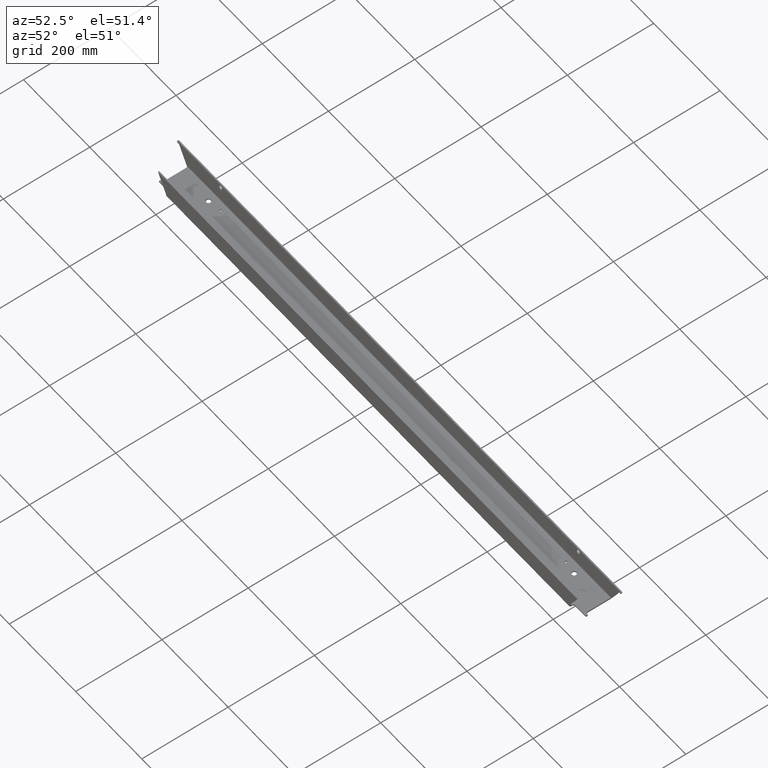
[diagram: clean part render]
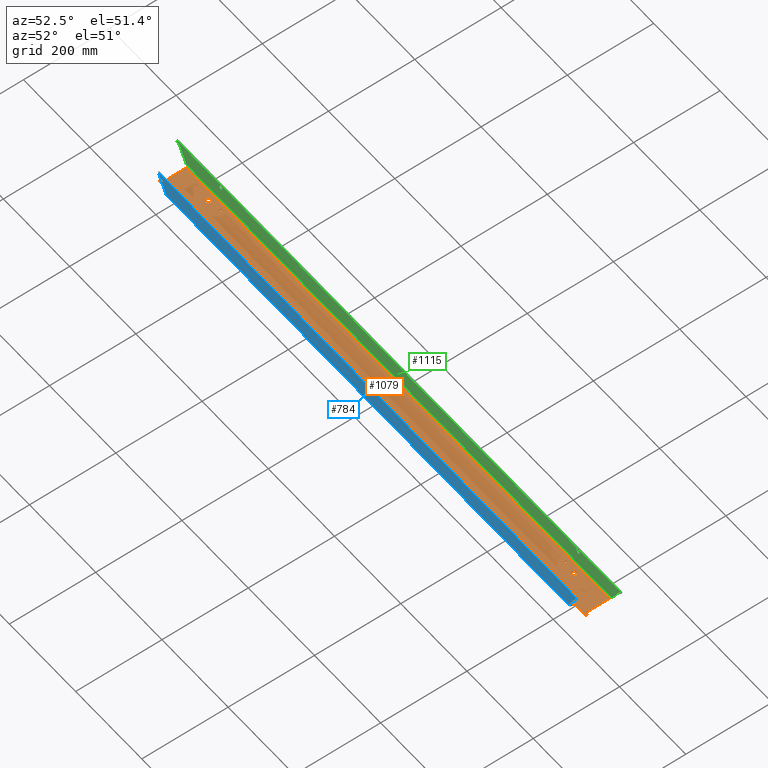
[diagram: same view with three faces highlighted in distinct colors, each labeled with its STEP entity id]
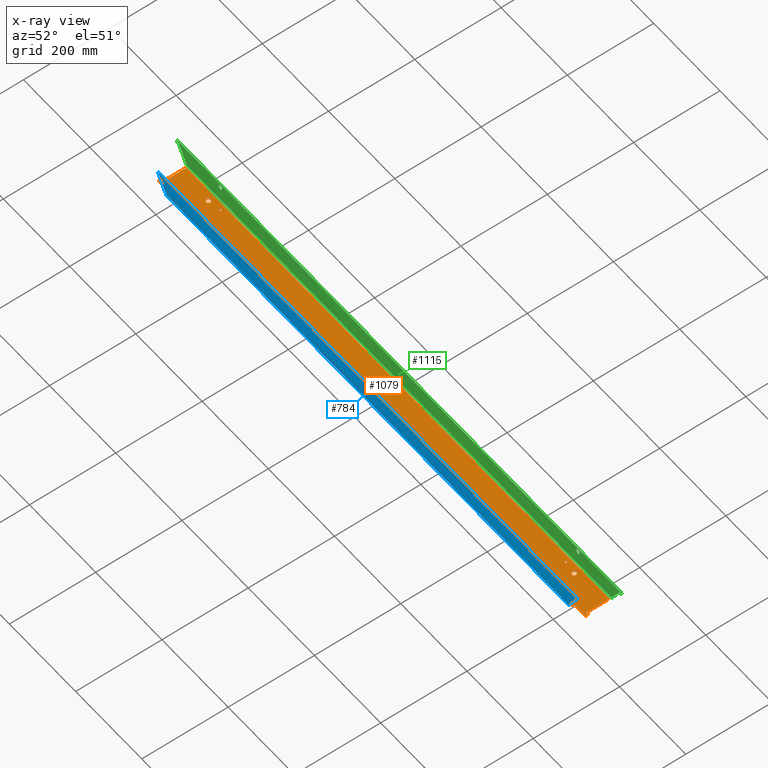
[diagram: x-ray of the same camera — body ghosted, the three highlighted faces saturated]
A machine part, auxiliary view with three faces highlighted in distinct colors.
The next image is the same camera in x-ray (body ghosted, the three faces saturated) — at least one of them is partly hidden behind the body in this view.
Their STEP definitions:

[orange] entity #1079 — the highlighted planar face has unit normal (-0, 0, 1).
#13 = EDGE_CURVE ( 'NONE', #2128, #1269, #2053, .T. ) ;
#24 = CARTESIAN_POINT ( 'NONE',  ( 1090.972523324353915, -1113.805262667903662, -1257.499999999999773 ) ) ;
#37 = CARTESIAN_POINT ( 'NONE',  ( 519.9000000000004320, -1093.805262667903662, -1257.499999999999773 ) ) ;
#45 = AXIS2_PLACEMENT_3D ( 'NONE', #1205, #2451, #2011 ) ;
#46 = CARTESIAN_POINT ( 'NONE',  ( 557.3731010869422562, -1114.805262667903662, -1257.499999999999545 ) ) ;
#47 = VECTOR ( 'NONE', #630, 1000.000000000000000 ) ;
#63 = CARTESIAN_POINT ( 'NONE',  ( 1090.972523324353915, -1093.805262667903662, -1257.499999999999773 ) ) ;
#81 = VECTOR ( 'NONE', #1681, 1000.000000000000000 ) ;
#83 = CARTESIAN_POINT ( 'NONE',  ( 523.1000000000004775, -1107.805262667903889, -1257.499999999999773 ) ) ;
#85 = AXIS2_PLACEMENT_3D ( 'NONE', #1565, #1791, #996 ) ;
#86 = DIRECTION ( 'NONE',  ( 0.000000000000000000, -1.000000000000000000, 0.000000000000000000 ) ) ;
#87 = VERTEX_POINT ( 'NONE', #2360 ) ;
#92 = CARTESIAN_POINT ( 'NONE',  ( 608.4639947775447126, -1163.805262667903662, -1257.499999999999545 ) ) ;
#98 = DIRECTION ( 'NONE',  ( -1.000000000000000000, 0.000000000000000000, -0.000000000000000000 ) ) ;
#115 = ORIENTED_EDGE ( 'NONE', *, *, #641, .T. ) ;
#123 = VECTOR ( 'NONE', #798, 1000.000000000000000 ) ;
#124 = CARTESIAN_POINT ( 'NONE',  ( -552.1231010869422562, -1148.805262667896613, -1257.499999999999545 ) ) ;
#125 = ORIENTED_EDGE ( 'NONE', *, *, #470, .F. ) ;
#127 = VECTOR ( 'NONE', #2058, 1000.000000000000000 ) ;
#128 = VECTOR ( 'NONE', #593, 1000.000000000000000 ) ;
#137 = CARTESIAN_POINT ( 'NONE',  ( -638.8674066218875396, -1153.805262667903662, -1257.499999999999773 ) ) ;
#160 = DIRECTION ( 'NONE',  ( 1.000000000000000000, 0.000000000000000000, 0.000000000000000000 ) ) ;
#184 = EDGE_CURVE ( 'NONE', #1341, #818, #445, .T. ) ;
#186 = VERTEX_POINT ( 'NONE', #802 ) ;
#199 = CIRCLE ( 'NONE', #1029, 5.249999999999976907 ) ;
#203 = DIRECTION ( 'NONE',  ( -0.000000000000000000, 0.000000000000000000, 1.000000000000000000 ) ) ;
#217 = VECTOR ( 'NONE', #2604, 1000.000000000000000 ) ;
#231 = ORIENTED_EDGE ( 'NONE', *, *, #2386, .F. ) ;
#241 = VECTOR ( 'NONE', #860, 1000.000000000000000 ) ;
#242 = CARTESIAN_POINT ( 'NONE',  ( 519.9000000000004320, -1107.805262667903889, -1257.499999999999773 ) ) ;
#243 = CIRCLE ( 'NONE', #948, 5.000000000000004441 ) ;
#246 = EDGE_LOOP ( 'NONE', ( #231, #125 ) ) ;
#256 = VECTOR ( 'NONE', #2500, 1000.000000000000000 ) ;
#269 = ORIENTED_EDGE ( 'NONE', *, *, #2535, .T. ) ;
#273 = EDGE_CURVE ( 'NONE', #1632, #1357, #2556, .T. ) ;
#279 = VECTOR ( 'NONE', #2539, 1000.000000000000000 ) ;
#283 = DIRECTION ( 'NONE',  ( -0.000000000000000000, -0.000000000000000000, 1.000000000000000000 ) ) ;
#286 = ORIENTED_EDGE ( 'NONE', *, *, #541, .T. ) ;
#288 = FACE_BOUND ( 'NONE', #421, .T. ) ;
#294 = LINE ( 'NONE', #1149, #2669 ) ;
#296 = ORIENTED_EDGE ( 'NONE', *, *, #2672, .T. ) ;
#300 = VECTOR ( 'NONE', #349, 1000.000000000000000 ) ;
#305 = ORIENTED_EDGE ( 'NONE', *, *, #2081, .F. ) ;
#306 = DIRECTION ( 'NONE',  ( 1.000000000000000000, 0.000000000000000000, 0.000000000000000000 ) ) ;
#314 = ORIENTED_EDGE ( 'NONE', *, *, #1686, .F. ) ;
#323 = EDGE_CURVE ( 'NONE', #908, #517, #2446, .T. ) ;
#340 = CIRCLE ( 'NONE', #85, 5.249999999999976907 ) ;
#349 = DIRECTION ( 'NONE',  ( 0.000000000000000000, 1.000000000000000000, -0.000000000000000000 ) ) ;
#362 = EDGE_CURVE ( 'NONE', #1357, #1904, #902, .T. ) ;
#367 = CARTESIAN_POINT ( 'NONE',  ( -644.8674066218874259, -1157.805262667903662, -1257.499999999999545 ) ) ;
#373 = EDGE_CURVE ( 'NONE', #908, #2649, #1262, .T. ) ;
#375 = DIRECTION ( 'NONE',  ( -0.000000000000000000, 0.000000000000000000, 1.000000000000000000 ) ) ;
#411 = CARTESIAN_POINT ( 'NONE',  ( 1090.972523324353915, -1107.805262667903889, -1257.499999999999773 ) ) ;
#416 = EDGE_CURVE ( 'NONE', #1583, #1632, #1820, .T. ) ;
#421 = EDGE_LOOP ( 'NONE', ( #553, #1244 ) ) ;
#445 = CIRCLE ( 'NONE', #592, 5.249999999999976907 ) ;
#451 = CARTESIAN_POINT ( 'NONE',  ( -552.1231010869422562, -1114.805262667903662, -1257.499999999999545 ) ) ;
#454 = DIRECTION ( 'NONE',  ( 0.000000000000000000, 1.000000000000000000, -0.000000000000000000 ) ) ;
#457 = EDGE_CURVE ( 'NONE', #186, #1502, #2488, .T. ) ;
#469 = CARTESIAN_POINT ( 'NONE',  ( 523.1000000000004775, -1093.805262667903662, -1257.499999999999773 ) ) ;
#470 = EDGE_CURVE ( 'NONE', #1720, #984, #199, .T. ) ;
#485 = CARTESIAN_POINT ( 'NONE',  ( 644.8674066218874259, -1157.805262667903662, -1257.499999999999545 ) ) ;
#486 = DIRECTION ( 'NONE',  ( 0.000000000000000000, -1.000000000000000000, 0.000000000000000000 ) ) ;
#495 = EDGE_CURVE ( 'NONE', #576, #2644, #1459, .T. ) ;
#517 = VERTEX_POINT ( 'NONE', #1235 ) ;
#518 = VECTOR ( 'NONE', #1484, 1000.000000000000000 ) ;
#534 = DIRECTION ( 'NONE',  ( -0.000000000000000000, 0.000000000000000000, 1.000000000000000000 ) ) ;
#541 = EDGE_CURVE ( 'NONE', #2261, #967, #604, .T. ) ;
#553 = ORIENTED_EDGE ( 'NONE', *, *, #1492, .F. ) ;
#561 = CARTESIAN_POINT ( 'NONE',  ( 523.1000000000004775, -1113.805262667903662, -1257.499999999999773 ) ) ;
#570 = CARTESIAN_POINT ( 'NONE',  ( 638.8674066218876533, -1093.805262667903662, -1257.499999999999773 ) ) ;
#576 = VERTEX_POINT ( 'NONE', #847 ) ;
#579 = EDGE_CURVE ( 'NONE', #873, #1088, #823, .T. ) ;
#580 = LINE ( 'NONE', #1789, #217 ) ;
#582 = EDGE_CURVE ( 'NONE', #1930, #1069, #243, .T. ) ;
#589 = CARTESIAN_POINT ( 'NONE',  ( -644.8674066218874259, -1153.805262667903662, -1257.499999999999545 ) ) ;
#592 = AXIS2_PLACEMENT_3D ( 'NONE', #1414, #1874, #1887 ) ;
#593 = DIRECTION ( 'NONE',  ( -1.000000000000000000, 0.000000000000000000, 0.000000000000000000 ) ) ;
#604 = LINE ( 'NONE', #1065, #241 ) ;
#608 = AXIS2_PLACEMENT_3D ( 'NONE', #124, #534, #1355 ) ;
#612 = LINE ( 'NONE', #1669, #127 ) ;
#615 = ORIENTED_EDGE ( 'NONE', *, *, #416, .T. ) ;
#625 = VERTEX_POINT ( 'NONE', #2540 ) ;
#630 = DIRECTION ( 'NONE',  ( 1.000000000000000000, 0.000000000000000000, 0.000000000000000000 ) ) ;
#637 = EDGE_CURVE ( 'NONE', #1787, #1083, #2370, .T. ) ;
#641 = EDGE_CURVE ( 'NONE', #2680, #1121, #294, .T. ) ;
#646 = CARTESIAN_POINT ( 'NONE',  ( -546.8731010869423699, -1114.805262667903662, -1257.499999999999545 ) ) ;
#658 = FACE_BOUND ( 'NONE', #2068, .T. ) ;
#665 = ORIENTED_EDGE ( 'NONE', *, *, #323, .F. ) ;
#673 = CARTESIAN_POINT ( 'NONE',  ( -519.9000000000004320, -1155.805262667903889, -1257.499999999999773 ) ) ;
#676 = CARTESIAN_POINT ( 'NONE',  ( 643.8674066218874259, -1157.805262667903662, -1257.499999999999545 ) ) ;
#685 = ORIENTED_EDGE ( 'NONE', *, *, #13, .T. ) ;
#686 = CARTESIAN_POINT ( 'NONE',  ( -638.8674066218875396, -1099.805262667903662, -1257.499999999999773 ) ) ;
#694 = CARTESIAN_POINT ( 'NONE',  ( -519.9000000000004320, -1113.805262667903662, -1257.499999999999773 ) ) ;
#700 = EDGE_CURVE ( 'NONE', #1904, #1583, #2110, .T. ) ;
#723 = LINE ( 'NONE', #904, #1136 ) ;
#725 = CARTESIAN_POINT ( 'NONE',  ( -519.9000000000004320, -1093.805262667903662, -1257.499999999999773 ) ) ;
#728 = VECTOR ( 'NONE', #1077, 1000.000000000000000 ) ;
#729 = CARTESIAN_POINT ( 'NONE',  ( 644.8674066218873122, -1154.805262667903435, -1257.499999999999318 ) ) ;
#737 = DIRECTION ( 'NONE',  ( 1.000000000000000000, 0.000000000000000000, 0.000000000000000000 ) ) ;
#746 = CIRCLE ( 'NONE', #1009, 5.249999999999976907 ) ;
#756 = CARTESIAN_POINT ( 'NONE',  ( 546.8731010869423699, -1114.805262667903662, -1257.499999999999545 ) ) ;
#758 = ORIENTED_EDGE ( 'NONE', *, *, #2411, .F. ) ;
#768 = AXIS2_PLACEMENT_3D ( 'NONE', #1422, #2237, #737 ) ;
#795 = DIRECTION ( 'NONE',  ( 0.000000000000000000, -1.000000000000000000, 0.000000000000000000 ) ) ;
#798 = DIRECTION ( 'NONE',  ( 1.000000000000000000, 0.000000000000000000, 0.000000000000000000 ) ) ;
#802 = CARTESIAN_POINT ( 'NONE',  ( -557.3731010869422562, -1148.805262667896613, -1257.499999999999545 ) ) ;
#810 = DIRECTION ( 'NONE',  ( 1.000000000000000000, 0.000000000000000000, 0.000000000000000000 ) ) ;
#818 = VERTEX_POINT ( 'NONE', #756 ) ;
#823 = LINE ( 'NONE', #1281, #728 ) ;
#824 = CARTESIAN_POINT ( 'NONE',  ( 519.9000000000004320, -1155.805262667903889, -1257.499999999999773 ) ) ;
#847 = CARTESIAN_POINT ( 'NONE',  ( 643.8674066218874259, -1153.805262667903662, -1257.499999999999545 ) ) ;
#850 = VECTOR ( 'NONE', #2086, 1000.000000000000000 ) ;
#855 = LINE ( 'NONE', #411, #81 ) ;
#856 = LINE ( 'NONE', #37, #1441 ) ;
#859 = EDGE_CURVE ( 'NONE', #2060, #1853, #1296, .T. ) ;
#860 = DIRECTION ( 'NONE',  ( 0.000000000000000000, 1.000000000000000000, 0.000000000000000000 ) ) ;
#861 = CARTESIAN_POINT ( 'NONE',  ( -613.4639947775447126, -1158.805262667903435, -1257.499999999999773 ) ) ;
#865 = EDGE_CURVE ( 'NONE', #1787, #873, #1410, .T. ) ;
#873 = VERTEX_POINT ( 'NONE', #137 ) ;
#899 = LINE ( 'NONE', #1951, #910 ) ;
#902 = LINE ( 'NONE', #1725, #279 ) ;
#904 = CARTESIAN_POINT ( 'NONE',  ( -519.9000000000004320, -1093.805262667903662, -1257.499999999999773 ) ) ;
#908 = VERTEX_POINT ( 'NONE', #2299 ) ;
#910 = VECTOR ( 'NONE', #2106, 1000.000000000000000 ) ;
#911 = FACE_BOUND ( 'NONE', #1031, .T. ) ;
#928 = EDGE_LOOP ( 'NONE', ( #1011, #758 ) ) ;
#932 = CARTESIAN_POINT ( 'NONE',  ( 1090.972523324353915, -1155.805262667903889, -1257.499999999999773 ) ) ;
#941 = CARTESIAN_POINT ( 'NONE',  ( -552.1231010869422562, -1114.805262667903662, -1257.499999999999545 ) ) ;
#945 = EDGE_CURVE ( 'NONE', #967, #2354, #855, .T. ) ;
#948 = AXIS2_PLACEMENT_3D ( 'NONE', #1449, #203, #1860 ) ;
#967 = VERTEX_POINT ( 'NONE', #1242 ) ;
#984 = VERTEX_POINT ( 'NONE', #646 ) ;
#990 = EDGE_CURVE ( 'NONE', #1853, #1269, #612, .T. ) ;
#996 = DIRECTION ( 'NONE',  ( 1.000000000000000000, 0.000000000000000000, 0.000000000000000000 ) ) ;
#997 = CARTESIAN_POINT ( 'NONE',  ( 523.1000000000004775, -1093.805262667903662, -1257.499999999999773 ) ) ;
#1009 = AXIS2_PLACEMENT_3D ( 'NONE', #2034, #1824, #810 ) ;
#1011 = ORIENTED_EDGE ( 'NONE', *, *, #1232, .F. ) ;
#1029 = AXIS2_PLACEMENT_3D ( 'NONE', #941, #1161, #1979 ) ;
#1031 = EDGE_LOOP ( 'NONE', ( #2319, #1045 ) ) ;
#1034 = EDGE_CURVE ( 'NONE', #1926, #2261, #1883, .T. ) ;
#1041 = ORIENTED_EDGE ( 'NONE', *, *, #1942, .T. ) ;
#1045 = ORIENTED_EDGE ( 'NONE', *, *, #2129, .F. ) ;
#1065 = CARTESIAN_POINT ( 'NONE',  ( -523.1000000000003638, -1093.805262667903662, -1257.499999999999773 ) ) ;
#1067 = EDGE_CURVE ( 'NONE', #1121, #2526, #899, .T. ) ;
#1069 = VERTEX_POINT ( 'NONE', #92 ) ;
#1073 = FACE_OUTER_BOUND ( 'NONE', #2662, .T. ) ;
#1077 = DIRECTION ( 'NONE',  ( 0.000000000000000000, 1.000000000000000000, -0.000000000000000000 ) ) ;
#1079 = ADVANCED_FACE ( 'NONE', ( #1073, #1329, #288, #911, #2565, #2339, #1086, #1102, #658 ), #2366, .T. ) ;
#1081 = ORIENTED_EDGE ( 'NONE', *, *, #1095, .T. ) ;
#1083 = VERTEX_POINT ( 'NONE', #1749 ) ;
#1086 = FACE_BOUND ( 'NONE', #2389, .T. ) ;
#1088 = VERTEX_POINT ( 'NONE', #686 ) ;
#1095 = EDGE_CURVE ( 'NONE', #2072, #2619, #1696, .T. ) ;
#1102 = FACE_BOUND ( 'NONE', #2056, .T. ) ;
#1113 = ORIENTED_EDGE ( 'NONE', *, *, #582, .F. ) ;
#1117 = ORIENTED_EDGE ( 'NONE', *, *, #1448, .T. ) ;
#1121 = VERTEX_POINT ( 'NONE', #1302 ) ;
#1122 = CARTESIAN_POINT ( 'NONE',  ( -546.8731010869423699, -1148.805262667896613, -1257.499999999999545 ) ) ;
#1128 = B_SPLINE_CURVE_WITH_KNOTS ( 'NONE', 1,
 ( #2393, #1388 ),
 .UNSPECIFIED., .F., .F.,
 ( 2, 2 ),
 ( 0.2499999999999930611, 0.4375000000000052180 ),
 .UNSPECIFIED. ) ;
#1136 = VECTOR ( 'NONE', #1728, 1000.000000000000000 ) ;
#1138 = VERTEX_POINT ( 'NONE', #673 ) ;
#1149 = CARTESIAN_POINT ( 'NONE',  ( -523.1000000000003638, -1093.805262667903662, -1257.499999999999773 ) ) ;
#1159 = LINE ( 'NONE', #570, #300 ) ;
#1161 = DIRECTION ( 'NONE',  ( -0.000000000000000000, 0.000000000000000000, 1.000000000000000000 ) ) ;
#1162 = CARTESIAN_POINT ( 'NONE',  ( -613.4639947775447126, -1163.805262667903662, -1257.499999999999773 ) ) ;
#1174 = DIRECTION ( 'NONE',  ( -1.000000000000000000, 0.000000000000000000, -0.000000000000000000 ) ) ;
#1205 = CARTESIAN_POINT ( 'NONE',  ( 643.8674066218874259, -1154.805262667903435, -1257.499999999999545 ) ) ;
#1216 = EDGE_CURVE ( 'NONE', #2128, #1083, #1128, .T. ) ;
#1229 = CARTESIAN_POINT ( 'NONE',  ( 557.3731010869422562, -1148.805262667896613, -1257.499999999999545 ) ) ;
#1232 = EDGE_CURVE ( 'NONE', #2547, #1612, #340, .T. ) ;
#1235 = CARTESIAN_POINT ( 'NONE',  ( 643.8674066218874259, -1158.805262667903435, -1257.499999999999545 ) ) ;
#1242 = CARTESIAN_POINT ( 'NONE',  ( -523.1000000000004775, -1107.805262667903889, -1257.499999999999773 ) ) ;
#1244 = ORIENTED_EDGE ( 'NONE', *, *, #457, .F. ) ;
#1246 = CARTESIAN_POINT ( 'NONE',  ( -643.8674066218874259, -1153.805262667903662, -1257.499999999999545 ) ) ;
#1250 = CARTESIAN_POINT ( 'NONE',  ( 1090.972523324353915, -1099.805262667903662, -1257.499999999999773 ) ) ;
#1262 = B_SPLINE_CURVE_WITH_KNOTS ( 'NONE', 1,
 ( #485, #1319 ),
 .UNSPECIFIED., .F., .F.,
 ( 2, 2 ),
 ( 0.2499999999999930611, 0.4375000000000052180 ),
 .UNSPECIFIED. ) ;
#1269 = VERTEX_POINT ( 'NONE', #1592 ) ;
#1281 = CARTESIAN_POINT ( 'NONE',  ( -638.8674066218875396, -1093.805262667903662, -1257.499999999999773 ) ) ;
#1296 = CIRCLE ( 'NONE', #2199, 5.000000000000004441 ) ;
#1302 = CARTESIAN_POINT ( 'NONE',  ( -523.1000000000004775, -1149.805262667903889, -1257.499999999999773 ) ) ;
#1319 = CARTESIAN_POINT ( 'NONE',  ( 644.8674066218873122, -1154.805262667903435, -1257.499999999999318 ) ) ;
#1329 = FACE_BOUND ( 'NONE', #246, .T. ) ;
#1341 = VERTEX_POINT ( 'NONE', #46 ) ;
#1345 = DIRECTION ( 'NONE',  ( 1.000000000000000000, 0.000000000000000000, 0.000000000000000000 ) ) ;
#1354 = AXIS2_PLACEMENT_3D ( 'NONE', #1778, #375, #160 ) ;
#1355 = DIRECTION ( 'NONE',  ( 1.000000000000000000, 0.000000000000000000, 0.000000000000000000 ) ) ;
#1357 = VERTEX_POINT ( 'NONE', #242 ) ;
#1381 = CARTESIAN_POINT ( 'NONE',  ( -608.4639947775447126, -1163.805262667903662, -1257.499999999999773 ) ) ;
#1383 = CARTESIAN_POINT ( 'NONE',  ( 1090.972523324353915, -1158.805262667903207, -1257.499999999999773 ) ) ;
#1385 = AXIS2_PLACEMENT_3D ( 'NONE', #1500, #1915, #1943 ) ;
#1386 = CARTESIAN_POINT ( 'NONE',  ( 523.1000000000004775, -1149.805262667903889, -1257.499999999999773 ) ) ;
#1388 = CARTESIAN_POINT ( 'NONE',  ( -644.8674066218873122, -1154.805262667903435, -1257.499999999999318 ) ) ;
#1410 = LINE ( 'NONE', #589, #123 ) ;
#1414 = CARTESIAN_POINT ( 'NONE',  ( 552.1231010869422562, -1114.805262667903662, -1257.499999999999545 ) ) ;
#1417 = ORIENTED_EDGE ( 'NONE', *, *, #990, .F. ) ;
#1421 = ORIENTED_EDGE ( 'NONE', *, *, #859, .F. ) ;
#1422 = CARTESIAN_POINT ( 'NONE',  ( -552.1231010869422562, -1148.805262667896613, -1257.499999999999545 ) ) ;
#1426 = VECTOR ( 'NONE', #1174, 1000.000000000000000 ) ;
#1435 = DIRECTION ( 'NONE',  ( 0.000000000000000000, 1.000000000000000000, -0.000000000000000000 ) ) ;
#1441 = VECTOR ( 'NONE', #1435, 1000.000000000000000 ) ;
#1446 = CARTESIAN_POINT ( 'NONE',  ( 1090.972523324353915, -1163.805262667903662, -1257.499999999999773 ) ) ;
#1448 = EDGE_CURVE ( 'NONE', #2526, #1138, #1744, .T. ) ;
#1449 = CARTESIAN_POINT ( 'NONE',  ( 613.4639947775447126, -1163.805262667903435, -1257.499999999999773 ) ) ;
#1459 = LINE ( 'NONE', #2476, #850 ) ;
#1468 = VECTOR ( 'NONE', #486, 1000.000000000000000 ) ;
#1484 = DIRECTION ( 'NONE',  ( -1.000000000000000000, 0.000000000000000000, -0.000000000000000000 ) ) ;
#1492 = EDGE_CURVE ( 'NONE', #1502, #186, #2504, .T. ) ;
#1498 = CARTESIAN_POINT ( 'NONE',  ( 519.9000000000004320, -1093.805262667903662, -1257.499999999999773 ) ) ;
#1500 = CARTESIAN_POINT ( 'NONE',  ( -643.8674066218874259, -1154.805262667903435, -1257.499999999999545 ) ) ;
#1502 = VERTEX_POINT ( 'NONE', #1122 ) ;
#1524 = DIRECTION ( 'NONE',  ( 1.000000000000000000, 0.000000000000000000, 0.000000000000000000 ) ) ;
#1526 = ORIENTED_EDGE ( 'NONE', *, *, #700, .T. ) ;
#1540 = CARTESIAN_POINT ( 'NONE',  ( -519.9000000000004320, -1107.805262667903889, -1257.499999999999773 ) ) ;
#1541 = ORIENTED_EDGE ( 'NONE', *, *, #637, .T. ) ;
#1564 = VECTOR ( 'NONE', #1524, 1000.000000000000000 ) ;
#1565 = CARTESIAN_POINT ( 'NONE',  ( 552.1231010869422562, -1148.805262667896613, -1257.499999999999545 ) ) ;
#1583 = VERTEX_POINT ( 'NONE', #561 ) ;
#1589 = ORIENTED_EDGE ( 'NONE', *, *, #495, .T. ) ;
#1592 = CARTESIAN_POINT ( 'NONE',  ( -643.8674066218874259, -1158.805262667903435, -1257.499999999999545 ) ) ;
#1600 = CARTESIAN_POINT ( 'NONE',  ( 519.9000000000004320, -1113.805262667903662, -1257.499999999999773 ) ) ;
#1612 = VERTEX_POINT ( 'NONE', #2025 ) ;
#1619 = CARTESIAN_POINT ( 'NONE',  ( -523.1000000000005912, -1155.805262667903889, -1257.499999999999773 ) ) ;
#1632 = VERTEX_POINT ( 'NONE', #1600 ) ;
#1651 = ORIENTED_EDGE ( 'NONE', *, *, #1216, .F. ) ;
#1669 = CARTESIAN_POINT ( 'NONE',  ( 1090.972523324353915, -1158.805262667903435, -1257.499999999999773 ) ) ;
#1681 = DIRECTION ( 'NONE',  ( 1.000000000000000000, 0.000000000000000000, 0.000000000000000000 ) ) ;
#1686 = EDGE_CURVE ( 'NONE', #517, #1930, #2229, .T. ) ;
#1696 = LINE ( 'NONE', #2322, #1564 ) ;
#1706 = ORIENTED_EDGE ( 'NONE', *, *, #865, .F. ) ;
#1708 = VERTEX_POINT ( 'NONE', #824 ) ;
#1720 = VERTEX_POINT ( 'NONE', #2274 ) ;
#1724 = ORIENTED_EDGE ( 'NONE', *, *, #579, .F. ) ;
#1725 = CARTESIAN_POINT ( 'NONE',  ( 1090.972523324353915, -1107.805262667903889, -1257.499999999999773 ) ) ;
#1728 = DIRECTION ( 'NONE',  ( 0.000000000000000000, -1.000000000000000000, 0.000000000000000000 ) ) ;
#1734 = ORIENTED_EDGE ( 'NONE', *, *, #2560, .F. ) ;
#1741 = DIRECTION ( 'NONE',  ( 0.000000000000000000, 0.000000000000000000, -1.000000000000000000 ) ) ;
#1744 = LINE ( 'NONE', #725, #2635 ) ;
#1749 = CARTESIAN_POINT ( 'NONE',  ( -644.8674066218873122, -1154.805262667903435, -1257.499999999999318 ) ) ;
#1778 = CARTESIAN_POINT ( 'NONE',  ( 552.1231010869422562, -1148.805262667896613, -1257.499999999999545 ) ) ;
#1787 = VERTEX_POINT ( 'NONE', #1246 ) ;
#1789 = CARTESIAN_POINT ( 'NONE',  ( 1090.972523324353915, -1155.805262667903889, -1257.499999999999773 ) ) ;
#1791 = DIRECTION ( 'NONE',  ( -0.000000000000000000, 0.000000000000000000, 1.000000000000000000 ) ) ;
#1802 = ORIENTED_EDGE ( 'NONE', *, *, #2520, .T. ) ;
#1820 = LINE ( 'NONE', #2225, #1426 ) ;
#1824 = DIRECTION ( 'NONE',  ( -0.000000000000000000, 0.000000000000000000, 1.000000000000000000 ) ) ;
#1847 = CARTESIAN_POINT ( 'NONE',  ( -523.1000000000005912, -1113.805262667903662, -1257.499999999999773 ) ) ;
#1853 = VERTEX_POINT ( 'NONE', #861 ) ;
#1860 = DIRECTION ( 'NONE',  ( 1.000000000000000000, 0.000000000000000000, 0.000000000000000000 ) ) ;
#1864 = CIRCLE ( 'NONE', #45, 1.000000000000000888 ) ;
#1868 = CIRCLE ( 'NONE', #1354, 5.249999999999976907 ) ;
#1869 = LINE ( 'NONE', #1250, #47 ) ;
#1874 = DIRECTION ( 'NONE',  ( -0.000000000000000000, 0.000000000000000000, 1.000000000000000000 ) ) ;
#1883 = LINE ( 'NONE', #24, #518 ) ;
#1887 = DIRECTION ( 'NONE',  ( 1.000000000000000000, 0.000000000000000000, 0.000000000000000000 ) ) ;
#1892 = ORIENTED_EDGE ( 'NONE', *, *, #945, .T. ) ;
#1895 = DIRECTION ( 'NONE',  ( -0.000000000000000000, 0.000000000000000000, 1.000000000000000000 ) ) ;
#1904 = VERTEX_POINT ( 'NONE', #83 ) ;
#1913 = ORIENTED_EDGE ( 'NONE', *, *, #373, .T. ) ;
#1915 = DIRECTION ( 'NONE',  ( -0.000000000000000000, -0.000000000000000000, 1.000000000000000000 ) ) ;
#1926 = VERTEX_POINT ( 'NONE', #694 ) ;
#1930 = VERTEX_POINT ( 'NONE', #2127 ) ;
#1934 = AXIS2_PLACEMENT_3D ( 'NONE', #676, #1741, #306 ) ;
#1942 = EDGE_CURVE ( 'NONE', #2354, #1926, #723, .T. ) ;
#1943 = DIRECTION ( 'NONE',  ( -1.000000000000000000, 0.000000000000000000, 0.000000000000000000 ) ) ;
#1951 = CARTESIAN_POINT ( 'NONE',  ( 1090.972523324353915, -1149.805262667903889, -1257.499999999999773 ) ) ;
#1957 = DIRECTION ( 'NONE',  ( 0.000000000000000000, 1.000000000000000000, 0.000000000000000000 ) ) ;
#1958 = LINE ( 'NONE', #932, #2075 ) ;
#1977 = CARTESIAN_POINT ( 'NONE',  ( -519.9000000000004320, -1149.805262667903889, -1257.499999999999773 ) ) ;
#1979 = DIRECTION ( 'NONE',  ( 1.000000000000000000, 0.000000000000000000, 0.000000000000000000 ) ) ;
#2006 = EDGE_CURVE ( 'NONE', #1138, #2680, #1958, .T. ) ;
#2011 = DIRECTION ( 'NONE',  ( 1.000000000000000000, 0.000000000000000000, 0.000000000000000000 ) ) ;
#2025 = CARTESIAN_POINT ( 'NONE',  ( 546.8731010869423699, -1148.805262667896613, -1257.499999999999545 ) ) ;
#2034 = CARTESIAN_POINT ( 'NONE',  ( 552.1231010869422562, -1114.805262667903662, -1257.499999999999545 ) ) ;
#2035 = ORIENTED_EDGE ( 'NONE', *, *, #2167, .F. ) ;
#2053 = CIRCLE ( 'NONE', #2092, 1.000000000000000888 ) ;
#2056 = EDGE_LOOP ( 'NONE', ( #296, #2471, #1081, #269 ) ) ;
#2057 = VECTOR ( 'NONE', #454, 1000.000000000000000 ) ;
#2058 = DIRECTION ( 'NONE',  ( -1.000000000000000000, 0.000000000000000000, -0.000000000000000000 ) ) ;
#2060 = VERTEX_POINT ( 'NONE', #1381 ) ;
#2068 = EDGE_LOOP ( 'NONE', ( #615, #2449, #2286, #1526 ) ) ;
#2072 = VERTEX_POINT ( 'NONE', #2240 ) ;
#2075 = VECTOR ( 'NONE', #98, 1000.000000000000000 ) ;
#2081 = EDGE_CURVE ( 'NONE', #576, #2649, #1864, .T. ) ;
#2086 = DIRECTION ( 'NONE',  ( -1.000000000000000000, 0.000000000000000000, 0.000000000000000000 ) ) ;
#2089 = EDGE_LOOP ( 'NONE', ( #2424, #1117, #2321, #115 ) ) ;
#2092 = AXIS2_PLACEMENT_3D ( 'NONE', #2586, #283, #2603 ) ;
#2106 = DIRECTION ( 'NONE',  ( 1.000000000000000000, 0.000000000000000000, 0.000000000000000000 ) ) ;
#2110 = LINE ( 'NONE', #469, #1468 ) ;
#2121 = CIRCLE ( 'NONE', #2597, 5.249999999999976907 ) ;
#2127 = CARTESIAN_POINT ( 'NONE',  ( 613.4639947775447126, -1158.805262667903207, -1257.499999999999773 ) ) ;
#2128 = VERTEX_POINT ( 'NONE', #367 ) ;
#2129 = EDGE_CURVE ( 'NONE', #818, #1341, #746, .T. ) ;
#2167 = EDGE_CURVE ( 'NONE', #1069, #2060, #2461, .T. ) ;
#2189 = LINE ( 'NONE', #997, #2549 ) ;
#2194 = DIRECTION ( 'NONE',  ( -0.000000000000000000, 0.000000000000000000, 1.000000000000000000 ) ) ;
#2199 = AXIS2_PLACEMENT_3D ( 'NONE', #1162, #2194, #2625 ) ;
#2218 = EDGE_CURVE ( 'NONE', #1708, #2072, #856, .T. ) ;
#2225 = CARTESIAN_POINT ( 'NONE',  ( 1090.972523324353915, -1113.805262667903662, -1257.499999999999773 ) ) ;
#2229 = LINE ( 'NONE', #1383, #128 ) ;
#2237 = DIRECTION ( 'NONE',  ( -0.000000000000000000, 0.000000000000000000, 1.000000000000000000 ) ) ;
#2240 = CARTESIAN_POINT ( 'NONE',  ( 519.9000000000004320, -1149.805262667903889, -1257.499999999999773 ) ) ;
#2261 = VERTEX_POINT ( 'NONE', #1847 ) ;
#2274 = CARTESIAN_POINT ( 'NONE',  ( -557.3731010869422562, -1114.805262667903662, -1257.499999999999545 ) ) ;
#2286 = ORIENTED_EDGE ( 'NONE', *, *, #362, .T. ) ;
#2299 = CARTESIAN_POINT ( 'NONE',  ( 644.8674066218874259, -1157.805262667903662, -1257.499999999999545 ) ) ;
#2319 = ORIENTED_EDGE ( 'NONE', *, *, #184, .F. ) ;
#2321 = ORIENTED_EDGE ( 'NONE', *, *, #2006, .T. ) ;
#2322 = CARTESIAN_POINT ( 'NONE',  ( 1090.972523324353915, -1149.805262667903889, -1257.499999999999773 ) ) ;
#2339 = FACE_BOUND ( 'NONE', #2089, .T. ) ;
#2354 = VERTEX_POINT ( 'NONE', #1540 ) ;
#2360 = CARTESIAN_POINT ( 'NONE',  ( 638.8674066218876533, -1099.805262667903662, -1257.499999999999545 ) ) ;
#2366 = PLANE ( 'NONE',  #2676 ) ;
#2367 = DIRECTION ( 'NONE',  ( -0.000000000000000000, 0.000000000000000000, 1.000000000000000000 ) ) ;
#2370 = CIRCLE ( 'NONE', #1385, 1.000000000000000888 ) ;
#2386 = EDGE_CURVE ( 'NONE', #984, #1720, #2121, .T. ) ;
#2389 = EDGE_LOOP ( 'NONE', ( #1892, #1041, #2441, #286 ) ) ;
#2393 = CARTESIAN_POINT ( 'NONE',  ( -644.8674066218874259, -1157.805262667903662, -1257.499999999999545 ) ) ;
#2411 = EDGE_CURVE ( 'NONE', #1612, #2547, #1868, .T. ) ;
#2419 = CARTESIAN_POINT ( 'NONE',  ( 638.8674066218874259, -1153.805262667903662, -1257.499999999999545 ) ) ;
#2424 = ORIENTED_EDGE ( 'NONE', *, *, #1067, .T. ) ;
#2441 = ORIENTED_EDGE ( 'NONE', *, *, #1034, .T. ) ;
#2446 = CIRCLE ( 'NONE', #1934, 1.000000000000000888 ) ;
#2449 = ORIENTED_EDGE ( 'NONE', *, *, #273, .T. ) ;
#2451 = DIRECTION ( 'NONE',  ( 0.000000000000000000, 0.000000000000000000, -1.000000000000000000 ) ) ;
#2461 = LINE ( 'NONE', #1446, #256 ) ;
#2471 = ORIENTED_EDGE ( 'NONE', *, *, #2218, .T. ) ;
#2476 = CARTESIAN_POINT ( 'NONE',  ( 644.8674066218874259, -1153.805262667903662, -1257.499999999999545 ) ) ;
#2488 = CIRCLE ( 'NONE', #768, 5.249999999999976907 ) ;
#2500 = DIRECTION ( 'NONE',  ( -1.000000000000000000, -0.000000000000000000, -0.000000000000000000 ) ) ;
#2504 = CIRCLE ( 'NONE', #608, 5.249999999999976907 ) ;
#2520 = EDGE_CURVE ( 'NONE', #2644, #87, #1159, .T. ) ;
#2526 = VERTEX_POINT ( 'NONE', #1977 ) ;
#2535 = EDGE_CURVE ( 'NONE', #2619, #625, #2189, .T. ) ;
#2536 = DIRECTION ( 'NONE',  ( 1.000000000000000000, 0.000000000000000000, 0.000000000000000000 ) ) ;
#2539 = DIRECTION ( 'NONE',  ( 1.000000000000000000, 0.000000000000000000, 0.000000000000000000 ) ) ;
#2540 = CARTESIAN_POINT ( 'NONE',  ( 523.1000000000004775, -1155.805262667903889, -1257.499999999999773 ) ) ;
#2547 = VERTEX_POINT ( 'NONE', #1229 ) ;
#2549 = VECTOR ( 'NONE', #795, 1000.000000000000000 ) ;
#2556 = LINE ( 'NONE', #1498, #2057 ) ;
#2560 = EDGE_CURVE ( 'NONE', #1088, #87, #1869, .T. ) ;
#2565 = FACE_BOUND ( 'NONE', #928, .T. ) ;
#2586 = CARTESIAN_POINT ( 'NONE',  ( -643.8674066218874259, -1157.805262667903662, -1257.499999999999545 ) ) ;
#2597 = AXIS2_PLACEMENT_3D ( 'NONE', #451, #2367, #1345 ) ;
#2603 = DIRECTION ( 'NONE',  ( -1.000000000000000000, 0.000000000000000000, 0.000000000000000000 ) ) ;
#2604 = DIRECTION ( 'NONE',  ( -1.000000000000000000, 0.000000000000000000, -0.000000000000000000 ) ) ;
#2619 = VERTEX_POINT ( 'NONE', #1386 ) ;
#2625 = DIRECTION ( 'NONE',  ( 1.000000000000000000, 0.000000000000000000, 0.000000000000000000 ) ) ;
#2635 = VECTOR ( 'NONE', #86, 1000.000000000000000 ) ;
#2644 = VERTEX_POINT ( 'NONE', #2419 ) ;
#2649 = VERTEX_POINT ( 'NONE', #729 ) ;
#2662 = EDGE_LOOP ( 'NONE', ( #1417, #1421, #2035, #1113, #314, #665, #1913, #305, #1589, #1802, #1734, #1724, #1706, #1541, #1651, #685 ) ) ;
#2669 = VECTOR ( 'NONE', #1957, 1000.000000000000000 ) ;
#2672 = EDGE_CURVE ( 'NONE', #625, #1708, #580, .T. ) ;
#2676 = AXIS2_PLACEMENT_3D ( 'NONE', #63, #1895, #2536 ) ;
#2680 = VERTEX_POINT ( 'NONE', #1619 ) ;

[blue] entity #784 — the highlighted planar face has unit normal (0, 1, 0).
#29 = DIRECTION ( 'NONE',  ( 0.5000000000000041078, 0.000000000000000000, -0.8660254037844363761 ) ) ;
#91 = ORIENTED_EDGE ( 'NONE', *, *, #2397, .T. ) ;
#147 = ORIENTED_EDGE ( 'NONE', *, *, #1920, .T. ) ;
#171 = VERTEX_POINT ( 'NONE', #239 ) ;
#193 = EDGE_CURVE ( 'NONE', #360, #2309, #2230, .T. ) ;
#239 = CARTESIAN_POINT ( 'NONE',  ( -609.1338677586223866, -1169.805262667903662, -1251.999999999999545 ) ) ;
#287 = EDGE_CURVE ( 'NONE', #171, #688, #896, .T. ) ;
#360 = VERTEX_POINT ( 'NONE', #1105 ) ;
#428 = CARTESIAN_POINT ( 'NONE',  ( 725.9129236839734176, -1169.805262667903662, -1049.732741877366834 ) ) ;
#475 = EDGE_CURVE ( 'NONE', #2627, #171, #869, .T. ) ;
#515 = CARTESIAN_POINT ( 'NONE',  ( -608.4639947775447126, -1169.805262667903662, -1254.499999999999773 ) ) ;
#620 = ORIENTED_EDGE ( 'NONE', *, *, #193, .T. ) ;
#650 = DIRECTION ( 'NONE',  ( 0.5000000000000041078, 0.000000000000000000, 0.8660254037844363761 ) ) ;
#669 = VECTOR ( 'NONE', #650, 1000.000000000000000 ) ;
#688 = VERTEX_POINT ( 'NONE', #515 ) ;
#709 = DIRECTION ( 'NONE',  ( 0.000000000000000000, 0.000000000000000000, 1.000000000000000000 ) ) ;
#761 = CARTESIAN_POINT ( 'NONE',  ( 1090.972523324353915, -1169.805262667903662, -1210.500000000000000 ) ) ;
#784 = ADVANCED_FACE ( 'NONE', ( #1394 ), #1766, .F. ) ;
#839 = VERTEX_POINT ( 'NONE', #942 ) ;
#869 = LINE ( 'NONE', #1641, #986 ) ;
#896 = CIRCLE ( 'NONE', #991, 5.000000000000115463 ) ;
#942 = CARTESIAN_POINT ( 'NONE',  ( 608.4639947775447126, -1169.805262667903662, -1254.500000000000000 ) ) ;
#986 = VECTOR ( 'NONE', #29, 1000.000000000000000 ) ;
#991 = AXIS2_PLACEMENT_3D ( 'NONE', #1132, #2109, #2138 ) ;
#1105 = CARTESIAN_POINT ( 'NONE',  ( 609.1338677586223866, -1169.805262667903662, -1251.999999999999773 ) ) ;
#1132 = CARTESIAN_POINT ( 'NONE',  ( -613.4639947775447126, -1169.805262667903662, -1254.499999999999773 ) ) ;
#1155 = LINE ( 'NONE', #761, #1308 ) ;
#1289 = LINE ( 'NONE', #2107, #2552 ) ;
#1308 = VECTOR ( 'NONE', #2432, 1000.000000000000000 ) ;
#1394 = FACE_OUTER_BOUND ( 'NONE', #1694, .T. ) ;
#1532 = DIRECTION ( 'NONE',  ( 0.000000000000000000, 1.000000000000000000, 0.000000000000000000 ) ) ;
#1545 = ORIENTED_EDGE ( 'NONE', *, *, #475, .T. ) ;
#1572 = AXIS2_PLACEMENT_3D ( 'NONE', #2169, #1532, #709 ) ;
#1578 = CARTESIAN_POINT ( 'NONE',  ( -633.0939039299922797, -1169.805262667903662, -1210.499999999999773 ) ) ;
#1597 = CARTESIAN_POINT ( 'NONE',  ( 1090.972523324353915, -1169.805262667903662, -1260.499999999999773 ) ) ;
#1636 = ORIENTED_EDGE ( 'NONE', *, *, #287, .T. ) ;
#1641 = CARTESIAN_POINT ( 'NONE',  ( -180.4266620217875925, -1169.805262667903662, -1994.542661907073352 ) ) ;
#1694 = EDGE_LOOP ( 'NONE', ( #1636, #91, #147, #620, #2510, #1545 ) ) ;
#1766 = PLANE ( 'NONE',  #2498 ) ;
#1920 = EDGE_CURVE ( 'NONE', #839, #360, #1950, .T. ) ;
#1950 = CIRCLE ( 'NONE', #1572, 5.000000000000115463 ) ;
#2107 = CARTESIAN_POINT ( 'NONE',  ( 1216.949570326560661, -1169.805262667903662, -1254.499999999999773 ) ) ;
#2109 = DIRECTION ( 'NONE',  ( 0.000000000000000000, 1.000000000000000000, 0.000000000000000000 ) ) ;
#2138 = DIRECTION ( 'NONE',  ( 0.000000000000000000, 0.000000000000000000, 1.000000000000000000 ) ) ;
#2169 = CARTESIAN_POINT ( 'NONE',  ( 613.4639947775447126, -1169.805262667903662, -1254.500000000000000 ) ) ;
#2180 = DIRECTION ( 'NONE',  ( 0.000000000000000000, 1.000000000000000000, 0.000000000000000000 ) ) ;
#2230 = LINE ( 'NONE', #428, #669 ) ;
#2239 = DIRECTION ( 'NONE',  ( 0.000000000000000000, 0.000000000000000000, 1.000000000000000000 ) ) ;
#2309 = VERTEX_POINT ( 'NONE', #2566 ) ;
#2397 = EDGE_CURVE ( 'NONE', #688, #839, #1289, .T. ) ;
#2432 = DIRECTION ( 'NONE',  ( -1.000000000000000000, -0.000000000000000000, -0.000000000000000000 ) ) ;
#2498 = AXIS2_PLACEMENT_3D ( 'NONE', #1597, #2180, #2239 ) ;
#2510 = ORIENTED_EDGE ( 'NONE', *, *, #2645, .T. ) ;
#2537 = DIRECTION ( 'NONE',  ( 1.000000000000000000, -0.000000000000000000, 0.000000000000000000 ) ) ;
#2552 = VECTOR ( 'NONE', #2537, 1000.000000000000000 ) ;
#2566 = CARTESIAN_POINT ( 'NONE',  ( 633.0939039299920523, -1169.805262667903662, -1210.500000000000000 ) ) ;
#2627 = VERTEX_POINT ( 'NONE', #1578 ) ;
#2645 = EDGE_CURVE ( 'NONE', #2309, #2627, #1155, .T. ) ;

[green] entity #1115 — the highlighted planar face has unit normal (0, -1, 0).
#21 = VECTOR ( 'NONE', #227, 1000.000000000000114 ) ;
#25 = CARTESIAN_POINT ( 'NONE',  ( 539.9999999999997726, -1096.805262667903435, -1219.999999999999545 ) ) ;
#27 = VECTOR ( 'NONE', #766, 1000.000000000000000 ) ;
#32 = LINE ( 'NONE', #1013, #866 ) ;
#40 = AXIS2_PLACEMENT_3D ( 'NONE', #2653, #247, #482 ) ;
#58 = DIRECTION ( 'NONE',  ( 0.5000000000000014433, 0.000000000000000000, 0.8660254037844378194 ) ) ;
#74 = ORIENTED_EDGE ( 'NONE', *, *, #2464, .F. ) ;
#75 = EDGE_CURVE ( 'NONE', #1447, #2325, #442, .T. ) ;
#104 = CARTESIAN_POINT ( 'NONE',  ( -540.0000000000002274, -1096.805262667903435, -1219.999999999999545 ) ) ;
#114 = EDGE_CURVE ( 'NONE', #368, #879, #1673, .T. ) ;
#121 = CARTESIAN_POINT ( 'NONE',  ( 539.9999999999997726, -1096.805262667903435, -1225.249999999546844 ) ) ;
#176 = AXIS2_PLACEMENT_3D ( 'NONE', #557, #2227, #1193 ) ;
#187 = LINE ( 'NONE', #2651, #1617 ) ;
#191 = EDGE_LOOP ( 'NONE', ( #2052, #1599 ) ) ;
#195 = VECTOR ( 'NONE', #1292, 1000.000000000000114 ) ;
#208 = AXIS2_PLACEMENT_3D ( 'NONE', #734, #538, #551 ) ;
#210 = ORIENTED_EDGE ( 'NONE', *, *, #238, .T. ) ;
#212 = DIRECTION ( 'NONE',  ( 0.000000000000000000, 0.000000000000000000, -1.000000000000000000 ) ) ;
#227 = DIRECTION ( 'NONE',  ( -0.8660254037844380415, 0.000000000000000000, 0.5000000000000009992 ) ) ;
#238 = EDGE_CURVE ( 'NONE', #1391, #2614, #1556, .T. ) ;
#247 = DIRECTION ( 'NONE',  ( 0.000000000000000000, -1.000000000000000000, 0.000000000000000000 ) ) ;
#274 = DIRECTION ( 'NONE',  ( 0.000000000000000000, -1.000000000000000000, 0.000000000000000000 ) ) ;
#355 = ORIENTED_EDGE ( 'NONE', *, *, #1267, .T. ) ;
#361 = LINE ( 'NONE', #1199, #1221 ) ;
#363 = CARTESIAN_POINT ( 'NONE',  ( -671.1990216965073159, -1096.805262667903207, -1212.499999999999545 ) ) ;
#365 = CARTESIAN_POINT ( 'NONE',  ( 1090.972523324353915, -1096.805262667903435, -1210.499999999999545 ) ) ;
#368 = VERTEX_POINT ( 'NONE', #2342 ) ;
#379 = DIRECTION ( 'NONE',  ( -0.5000000000000009992, 0.000000000000000000, 0.8660254037844380415 ) ) ;
#398 = EDGE_CURVE ( 'NONE', #1234, #857, #2009, .T. ) ;
#406 = EDGE_CURVE ( 'NONE', #1579, #923, #722, .T. ) ;
#432 = VERTEX_POINT ( 'NONE', #1806 ) ;
#440 = DIRECTION ( 'NONE',  ( -1.000000000000000000, -0.000000000000000000, 0.000000000000000000 ) ) ;
#442 = CIRCLE ( 'NONE', #668, 0.9999999999998898659 ) ;
#450 = FACE_BOUND ( 'NONE', #2346, .T. ) ;
#463 = AXIS2_PLACEMENT_3D ( 'NONE', #2460, #2250, #212 ) ;
#482 = DIRECTION ( 'NONE',  ( 0.000000000000000000, 0.000000000000000000, -1.000000000000000000 ) ) ;
#506 = VECTOR ( 'NONE', #440, 1000.000000000000000 ) ;
#508 = ORIENTED_EDGE ( 'NONE', *, *, #1047, .F. ) ;
#522 = CIRCLE ( 'NONE', #176, 0.9999999999998898659 ) ;
#530 = CARTESIAN_POINT ( 'NONE',  ( -540.0000000000002274, -1096.805262667903435, -1219.999999999999545 ) ) ;
#538 = DIRECTION ( 'NONE',  ( 0.000000000000000000, -1.000000000000000000, 0.000000000000000000 ) ) ;
#543 = CARTESIAN_POINT ( 'NONE',  ( 642.3315082370262417, -1096.805262667903435, -1254.499999999999545 ) ) ;
#551 = DIRECTION ( 'NONE',  ( 0.000000000000000000, 0.000000000000000000, -1.000000000000000000 ) ) ;
#557 = CARTESIAN_POINT ( 'NONE',  ( 669.8329962927230099, -1096.805262667903207, -1212.866025403784079 ) ) ;
#564 = EDGE_CURVE ( 'NONE', #854, #432, #2061, .T. ) ;
#590 = LINE ( 'NONE', #1981, #2640 ) ;
#602 = DIRECTION ( 'NONE',  ( 0.000000000000000000, 0.000000000000000000, -1.000000000000000000 ) ) ;
#651 = VECTOR ( 'NONE', #2176, 1000.000000000000114 ) ;
#668 = AXIS2_PLACEMENT_3D ( 'NONE', #2200, #2375, #1370 ) ;
#690 = CARTESIAN_POINT ( 'NONE',  ( -672.1631233116455633, -1096.805262667903207, -1218.830127018921985 ) ) ;
#712 = EDGE_LOOP ( 'NONE', ( #355, #1562, #1703, #1833, #736, #2298, #1587, #2601, #74, #1731, #2452, #2622, #2405, #210, #2220, #1346 ) ) ;
#722 = CIRCLE ( 'NONE', #1070, 5.249999999547227958 ) ;
#734 = CARTESIAN_POINT ( 'NONE',  ( -668.3329962927228962, -1096.805262667903207, -1215.464101615137224 ) ) ;
#736 = ORIENTED_EDGE ( 'NONE', *, *, #1380, .T. ) ;
#763 = DIRECTION ( 'NONE',  ( 0.5000000000000011102, 0.000000000000000000, 0.8660254037844379305 ) ) ;
#766 = DIRECTION ( 'NONE',  ( -1.000000000000000000, -0.000000000000000000, -0.000000000000000000 ) ) ;
#776 = CARTESIAN_POINT ( 'NONE',  ( -665.2349200813694097, -1096.805262667903207, -1214.830127018921758 ) ) ;
#783 = CARTESIAN_POINT ( 'NONE',  ( 665.2349200813698644, -1096.805262667903435, -1214.830127018921758 ) ) ;
#808 = VERTEX_POINT ( 'NONE', #1625 ) ;
#831 = CIRCLE ( 'NONE', #2212, 5.249999999547227958 ) ;
#854 = VERTEX_POINT ( 'NONE', #543 ) ;
#857 = VERTEX_POINT ( 'NONE', #1379 ) ;
#863 = DIRECTION ( 'NONE',  ( 0.000000000000000000, 0.000000000000000000, -1.000000000000000000 ) ) ;
#866 = VECTOR ( 'NONE', #58, 1000.000000000000114 ) ;
#879 = VERTEX_POINT ( 'NONE', #783 ) ;
#885 = CARTESIAN_POINT ( 'NONE',  ( 1090.972523324353915, -1096.805262667903435, -1260.499999999999545 ) ) ;
#919 = ORIENTED_EDGE ( 'NONE', *, *, #2160, .F. ) ;
#922 = CARTESIAN_POINT ( 'NONE',  ( 669.1990216965073159, -1096.805262667903207, -1215.964101615137224 ) ) ;
#923 = VERTEX_POINT ( 'NONE', #2678 ) ;
#959 = AXIS2_PLACEMENT_3D ( 'NONE', #2553, #274, #1114 ) ;
#970 = EDGE_CURVE ( 'NONE', #2325, #368, #1220, .T. ) ;
#1013 = CARTESIAN_POINT ( 'NONE',  ( 671.1990216965073159, -1096.805262667903207, -1212.499999999999545 ) ) ;
#1047 = EDGE_CURVE ( 'NONE', #2108, #1151, #2032, .T. ) ;
#1050 = CARTESIAN_POINT ( 'NONE',  ( -670.3329962927230099, -1096.805262667903207, -1211.999999999999545 ) ) ;
#1070 = AXIS2_PLACEMENT_3D ( 'NONE', #530, #1392, #1377 ) ;
#1114 = DIRECTION ( 'NONE',  ( 0.000000000000000000, 0.000000000000000000, -1.000000000000000000 ) ) ;
#1115 = ADVANCED_FACE ( 'NONE', ( #2310, #450, #1553 ), #2135, .T. ) ;
#1127 = EDGE_CURVE ( 'NONE', #1712, #1894, #2204, .T. ) ;
#1151 = VERTEX_POINT ( 'NONE', #2352 ) ;
#1190 = EDGE_CURVE ( 'NONE', #1894, #1391, #2543, .T. ) ;
#1193 = DIRECTION ( 'NONE',  ( 0.000000000000000000, 0.000000000000000000, -1.000000000000000000 ) ) ;
#1199 = CARTESIAN_POINT ( 'NONE',  ( 751.8936857975053272, -1096.805262667903435, -1064.732741877367744 ) ) ;
#1220 = CIRCLE ( 'NONE', #463, 0.9999999999998898659 ) ;
#1221 = VECTOR ( 'NONE', #763, 1000.000000000000114 ) ;
#1234 = VERTEX_POINT ( 'NONE', #1762 ) ;
#1267 = EDGE_CURVE ( 'NONE', #854, #879, #361, .T. ) ;
#1270 = CARTESIAN_POINT ( 'NONE',  ( 672.1631233116455633, -1096.805262667903207, -1218.830127018921985 ) ) ;
#1292 = DIRECTION ( 'NONE',  ( 0.8660254037844380415, 0.000000000000000000, 0.5000000000000009992 ) ) ;
#1313 = EDGE_CURVE ( 'NONE', #923, #1579, #1439, .T. ) ;
#1334 = CARTESIAN_POINT ( 'NONE',  ( -668.3329962927228962, -1096.805262667903207, -1216.464101615137224 ) ) ;
#1346 = ORIENTED_EDGE ( 'NONE', *, *, #564, .F. ) ;
#1370 = DIRECTION ( 'NONE',  ( 0.000000000000000000, 0.000000000000000000, -1.000000000000000000 ) ) ;
#1377 = DIRECTION ( 'NONE',  ( 0.000000000000000000, 0.000000000000000000, -1.000000000000000000 ) ) ;
#1379 = CARTESIAN_POINT ( 'NONE',  ( -667.7349200813695234, -1096.805262667903207, -1210.499999999999545 ) ) ;
#1380 = EDGE_CURVE ( 'NONE', #1447, #808, #32, .T. ) ;
#1391 = VERTEX_POINT ( 'NONE', #1704 ) ;
#1392 = DIRECTION ( 'NONE',  ( 0.000000000000000000, -1.000000000000000000, 0.000000000000000000 ) ) ;
#1413 = CARTESIAN_POINT ( 'NONE',  ( -540.0000000000002274, -1096.805262667903435, -1225.249999999546844 ) ) ;
#1439 = CIRCLE ( 'NONE', #1519, 5.249999999547227958 ) ;
#1447 = VERTEX_POINT ( 'NONE', #922 ) ;
#1453 = DIRECTION ( 'NONE',  ( -0.8660254037844380415, 0.000000000000000000, 0.5000000000000009992 ) ) ;
#1519 = AXIS2_PLACEMENT_3D ( 'NONE', #104, #2292, #863 ) ;
#1553 = FACE_OUTER_BOUND ( 'NONE', #712, .T. ) ;
#1556 = LINE ( 'NONE', #690, #195 ) ;
#1562 = ORIENTED_EDGE ( 'NONE', *, *, #114, .F. ) ;
#1579 = VERTEX_POINT ( 'NONE', #1413 ) ;
#1587 = ORIENTED_EDGE ( 'NONE', *, *, #2572, .T. ) ;
#1599 = ORIENTED_EDGE ( 'NONE', *, *, #1313, .F. ) ;
#1611 = CARTESIAN_POINT ( 'NONE',  ( -670.6990216965074296, -1096.805262667903207, -1213.366025403783851 ) ) ;
#1613 = AXIS2_PLACEMENT_3D ( 'NONE', #2051, #1615, #2602 ) ;
#1615 = DIRECTION ( 'NONE',  ( 0.000000000000000000, -1.000000000000000000, 0.000000000000000000 ) ) ;
#1617 = VECTOR ( 'NONE', #1453, 1000.000000000000114 ) ;
#1625 = CARTESIAN_POINT ( 'NONE',  ( 670.6990216965074296, -1096.805262667903207, -1213.366025403783851 ) ) ;
#1664 = EDGE_CURVE ( 'NONE', #2270, #2080, #2253, .T. ) ;
#1673 = LINE ( 'NONE', #1270, #21 ) ;
#1682 = DIRECTION ( 'NONE',  ( 0.000000000000000000, -1.000000000000000000, 0.000000000000000000 ) ) ;
#1695 = VECTOR ( 'NONE', #1792, 1000.000000000000114 ) ;
#1703 = ORIENTED_EDGE ( 'NONE', *, *, #970, .F. ) ;
#1704 = CARTESIAN_POINT ( 'NONE',  ( -667.8329962927230099, -1096.805262667903207, -1216.330127018921758 ) ) ;
#1709 = DIRECTION ( 'NONE',  ( 0.000000000000000000, -1.000000000000000000, 0.000000000000000000 ) ) ;
#1712 = VERTEX_POINT ( 'NONE', #2100 ) ;
#1731 = ORIENTED_EDGE ( 'NONE', *, *, #1664, .T. ) ;
#1762 = CARTESIAN_POINT ( 'NONE',  ( 667.7349200813698644, -1096.805262667903435, -1210.499999999999545 ) ) ;
#1792 = DIRECTION ( 'NONE',  ( -0.5000000000000014433, 0.000000000000000000, 0.8660254037844378194 ) ) ;
#1806 = CARTESIAN_POINT ( 'NONE',  ( -642.3315082370257869, -1096.805262667903662, -1254.499999999999545 ) ) ;
#1833 = ORIENTED_EDGE ( 'NONE', *, *, #75, .F. ) ;
#1894 = VERTEX_POINT ( 'NONE', #1334 ) ;
#1938 = DIRECTION ( 'NONE',  ( 0.000000000000000000, 0.000000000000000000, -1.000000000000000000 ) ) ;
#1964 = CARTESIAN_POINT ( 'NONE',  ( 668.3329962927228962, -1096.805262667903207, -1216.464101615137224 ) ) ;
#1981 = CARTESIAN_POINT ( 'NONE',  ( -206.4074241353259822, -1096.805262667903435, -2009.542661907070169 ) ) ;
#2009 = LINE ( 'NONE', #365, #27 ) ;
#2032 = CIRCLE ( 'NONE', #40, 5.249999999547227958 ) ;
#2049 = EDGE_CURVE ( 'NONE', #2149, #808, #522, .T. ) ;
#2051 = CARTESIAN_POINT ( 'NONE',  ( -669.8329962927230099, -1096.805262667903207, -1212.866025403784079 ) ) ;
#2052 = ORIENTED_EDGE ( 'NONE', *, *, #406, .F. ) ;
#2061 = LINE ( 'NONE', #2304, #506 ) ;
#2080 = VERTEX_POINT ( 'NONE', #1611 ) ;
#2100 = CARTESIAN_POINT ( 'NONE',  ( -669.1990216965073159, -1096.805262667903207, -1215.964101615137224 ) ) ;
#2108 = VERTEX_POINT ( 'NONE', #121 ) ;
#2135 = PLANE ( 'NONE',  #2376 ) ;
#2142 = EDGE_CURVE ( 'NONE', #432, #2614, #590, .T. ) ;
#2149 = VERTEX_POINT ( 'NONE', #2665 ) ;
#2160 = EDGE_CURVE ( 'NONE', #1151, #2108, #831, .T. ) ;
#2176 = DIRECTION ( 'NONE',  ( 0.8660254037844380415, 0.000000000000000000, 0.5000000000000009992 ) ) ;
#2200 = CARTESIAN_POINT ( 'NONE',  ( 668.3329962927228962, -1096.805262667903207, -1215.464101615137224 ) ) ;
#2204 = CIRCLE ( 'NONE', #959, 0.9999999999998898659 ) ;
#2212 = AXIS2_PLACEMENT_3D ( 'NONE', #25, #1682, #602 ) ;
#2220 = ORIENTED_EDGE ( 'NONE', *, *, #2142, .F. ) ;
#2222 = CARTESIAN_POINT ( 'NONE',  ( -674.6631233116455633, -1096.805262667903207, -1214.499999999999773 ) ) ;
#2227 = DIRECTION ( 'NONE',  ( -0.000000000000000000, 1.000000000000000000, -0.000000000000000000 ) ) ;
#2235 = LINE ( 'NONE', #2222, #651 ) ;
#2250 = DIRECTION ( 'NONE',  ( -0.000000000000000000, 1.000000000000000000, -0.000000000000000000 ) ) ;
#2253 = CIRCLE ( 'NONE', #1613, 0.9999999999998898659 ) ;
#2270 = VERTEX_POINT ( 'NONE', #1050 ) ;
#2292 = DIRECTION ( 'NONE',  ( 0.000000000000000000, -1.000000000000000000, 0.000000000000000000 ) ) ;
#2298 = ORIENTED_EDGE ( 'NONE', *, *, #2049, .F. ) ;
#2304 = CARTESIAN_POINT ( 'NONE',  ( 1090.972523324353915, -1096.805262667903435, -1254.499999999999545 ) ) ;
#2310 = FACE_BOUND ( 'NONE', #191, .T. ) ;
#2325 = VERTEX_POINT ( 'NONE', #1964 ) ;
#2342 = CARTESIAN_POINT ( 'NONE',  ( 667.8329962927230099, -1096.805262667903207, -1216.330127018921758 ) ) ;
#2346 = EDGE_LOOP ( 'NONE', ( #508, #919 ) ) ;
#2352 = CARTESIAN_POINT ( 'NONE',  ( 539.9999999999997726, -1096.805262667903435, -1214.750000000452246 ) ) ;
#2375 = DIRECTION ( 'NONE',  ( -0.000000000000000000, 1.000000000000000000, -0.000000000000000000 ) ) ;
#2376 = AXIS2_PLACEMENT_3D ( 'NONE', #885, #1709, #1938 ) ;
#2405 = ORIENTED_EDGE ( 'NONE', *, *, #1190, .T. ) ;
#2452 = ORIENTED_EDGE ( 'NONE', *, *, #2511, .F. ) ;
#2460 = CARTESIAN_POINT ( 'NONE',  ( 668.3329962927228962, -1096.805262667903207, -1215.464101615137224 ) ) ;
#2464 = EDGE_CURVE ( 'NONE', #2270, #857, #2235, .T. ) ;
#2511 = EDGE_CURVE ( 'NONE', #1712, #2080, #2609, .T. ) ;
#2543 = CIRCLE ( 'NONE', #208, 0.9999999999998898659 ) ;
#2553 = CARTESIAN_POINT ( 'NONE',  ( -668.3329962927228962, -1096.805262667903207, -1215.464101615137224 ) ) ;
#2572 = EDGE_CURVE ( 'NONE', #2149, #1234, #187, .T. ) ;
#2601 = ORIENTED_EDGE ( 'NONE', *, *, #398, .T. ) ;
#2602 = DIRECTION ( 'NONE',  ( 0.000000000000000000, 0.000000000000000000, -1.000000000000000000 ) ) ;
#2609 = LINE ( 'NONE', #363, #1695 ) ;
#2614 = VERTEX_POINT ( 'NONE', #776 ) ;
#2622 = ORIENTED_EDGE ( 'NONE', *, *, #1127, .T. ) ;
#2640 = VECTOR ( 'NONE', #379, 1000.000000000000114 ) ;
#2651 = CARTESIAN_POINT ( 'NONE',  ( 674.6631233116455633, -1096.805262667903207, -1214.499999999999773 ) ) ;
#2653 = CARTESIAN_POINT ( 'NONE',  ( 539.9999999999997726, -1096.805262667903435, -1219.999999999999545 ) ) ;
#2665 = CARTESIAN_POINT ( 'NONE',  ( 670.3329962927230099, -1096.805262667903207, -1211.999999999999545 ) ) ;
#2678 = CARTESIAN_POINT ( 'NONE',  ( -540.0000000000002274, -1096.805262667903435, -1214.750000000452246 ) ) ;